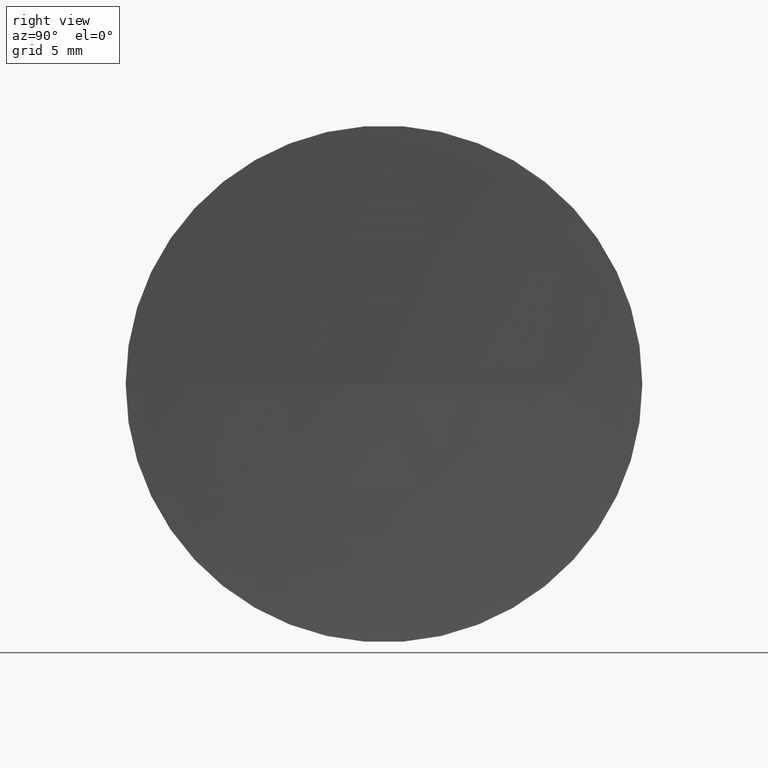
[diagram: clean part render]
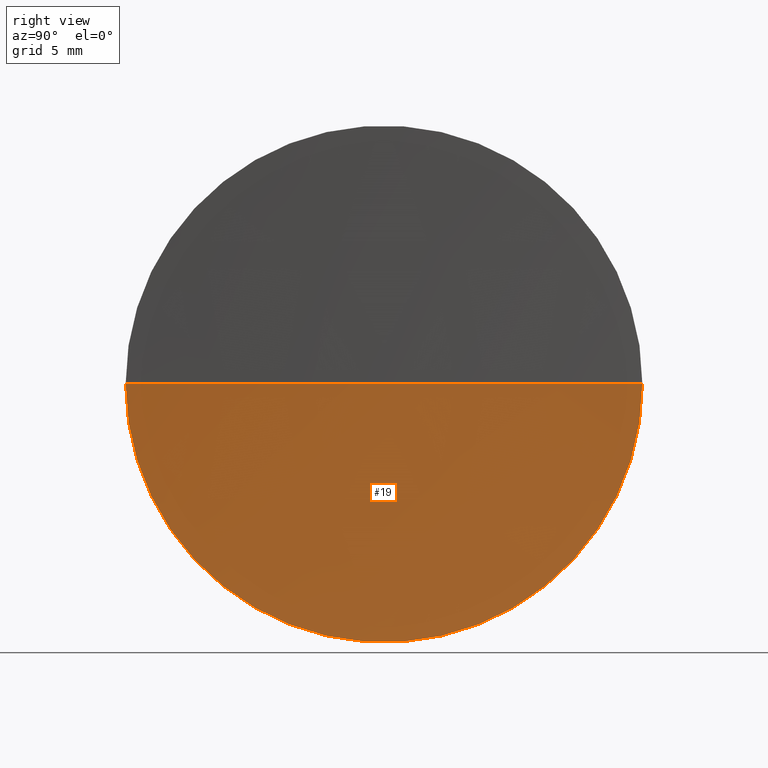
[diagram: same view with one face highlighted and labeled with its STEP entity id]
A machine part, right view. The second image highlights one B-rep face of the part: STEP entity #19.
In plain terms, the highlighted spherical surface has radius 206.1 mm.
Its self-contained STEP definition (entity closure, byte-faithful):
#2 = EDGE_CURVE ( 'NONE', #10, #25, #61, .T. ) ;
#5 = AXIS2_PLACEMENT_3D ( 'NONE', #35, #67, #92 ) ;
#7 = AXIS2_PLACEMENT_3D ( 'NONE', #66, #77, #22 ) ;
#8 = DIRECTION ( 'NONE',  ( 8.080225797854122700E-016, 1.000000000000000000, 0.0000000000000000000 ) ) ;
#10 = VERTEX_POINT ( 'NONE', #140 ) ;
#11 = EDGE_CURVE ( 'NONE', #88, #25, #155, .T. ) ;
#19 = ADVANCED_FACE ( 'NONE', ( #165 ), #37, .F. ) ;
#22 = DIRECTION ( 'NONE',  ( 1.000000000000000000, 0.0000000000000000000, 0.0000000000000000000 ) ) ;
#25 = VERTEX_POINT ( 'NONE', #117 ) ;
#27 = DIRECTION ( 'NONE',  ( -1.000000000000000000, 7.636108817321419600E-016, -0.0000000000000000000 ) ) ;
#35 = CARTESIAN_POINT ( 'NONE',  ( 265.4581901580211300, 32.57872591329290700, 0.0000000000000000000 ) ) ;
#37 = SPHERICAL_SURFACE ( 'NONE', #103, 206.0999999999999900 ) ;
#42 = CARTESIAN_POINT ( 'NONE',  ( 59.73760295294821500, 45.07872591329273600, 0.0000000000000000000 ) ) ;
#61 = CIRCLE ( 'NONE', #5, 206.0999999999999900 ) ;
#66 = CARTESIAN_POINT ( 'NONE',  ( 265.4581901580211300, 32.57872591329290700, 0.0000000000000000000 ) ) ;
#67 = DIRECTION ( 'NONE',  ( 9.351536221073556900E-032, 1.224646799147353200E-016, -1.000000000000000000 ) ) ;
#77 = DIRECTION ( 'NONE',  ( 0.0000000000000000000, 0.0000000000000000000, 1.000000000000000000 ) ) ;
#88 = VERTEX_POINT ( 'NONE', #42 ) ;
#92 = DIRECTION ( 'NONE',  ( 0.0000000000000000000, 1.000000000000000000, 1.224646799147353500E-016 ) ) ;
#103 = AXIS2_PLACEMENT_3D ( 'NONE', #105, #128, #8 ) ;
#105 = CARTESIAN_POINT ( 'NONE',  ( 265.4581901580211300, 32.57872591329290700, 0.0000000000000000000 ) ) ;
#107 = EDGE_LOOP ( 'NONE', ( #134, #116, #156 ) ) ;
#116 = ORIENTED_EDGE ( 'NONE', *, *, #137, .F. ) ;
#117 = CARTESIAN_POINT ( 'NONE',  ( 59.35819015802113100, 32.57872591329307700, 0.0000000000000000000 ) ) ;
#118 = CIRCLE ( 'NONE', #157, 12.50000000000000000 ) ;
#128 = DIRECTION ( 'NONE',  ( 0.0000000000000000000, 0.0000000000000000000, -1.000000000000000000 ) ) ;
#131 = DIRECTION ( 'NONE',  ( -5.551115123125782700E-016, -1.000000000000000000, 0.0000000000000000000 ) ) ;
#134 = ORIENTED_EDGE ( 'NONE', *, *, #2, .F. ) ;
#137 = EDGE_CURVE ( 'NONE', #88, #10, #118, .T. ) ;
#140 = CARTESIAN_POINT ( 'NONE',  ( 59.73760295294820800, 20.07872591329342200, -1.530808498934147900E-015 ) ) ;
#155 = CIRCLE ( 'NONE', #7, 206.0999999999999900 ) ;
#156 = ORIENTED_EDGE ( 'NONE', *, *, #11, .T. ) ;
#157 = AXIS2_PLACEMENT_3D ( 'NONE', #163, #27, #131 ) ;
#163 = CARTESIAN_POINT ( 'NONE',  ( 59.73760295294823000, 32.57872591329309100, 0.0000000000000000000 ) ) ;
#165 = FACE_OUTER_BOUND ( 'NONE', #107, .T. ) ;